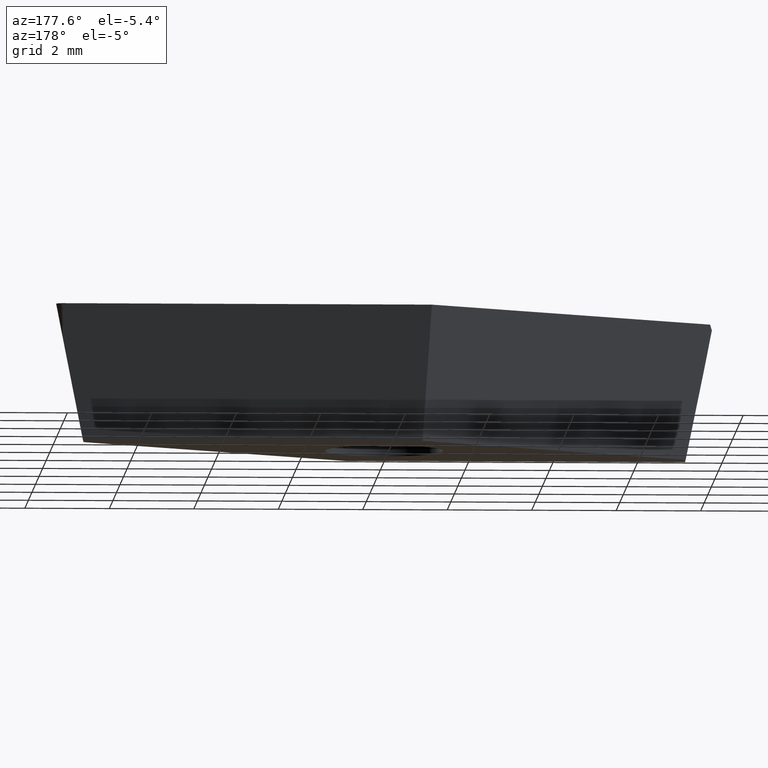
[diagram: clean part render]
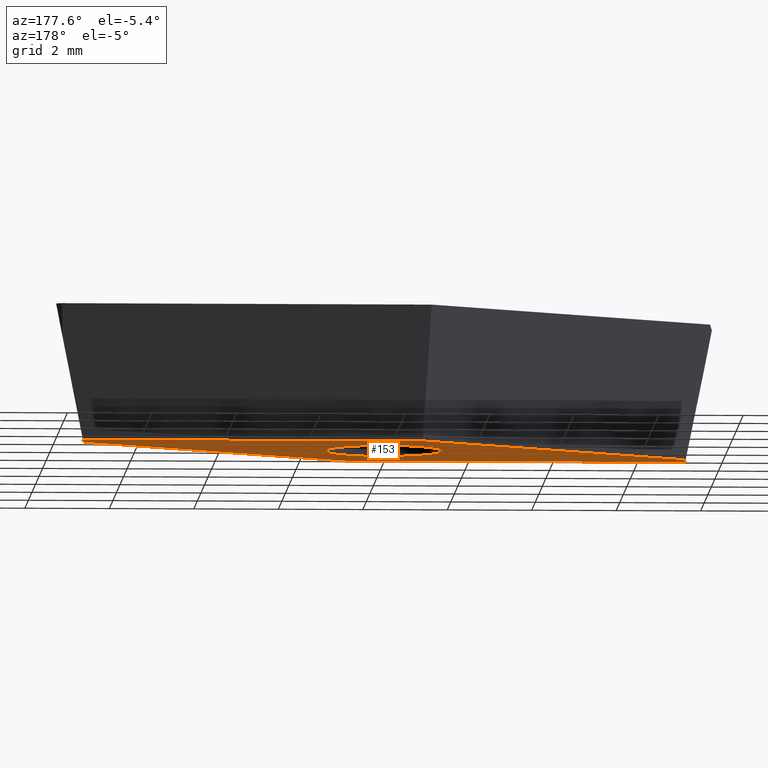
[diagram: same view with one face highlighted and labeled with its STEP entity id]
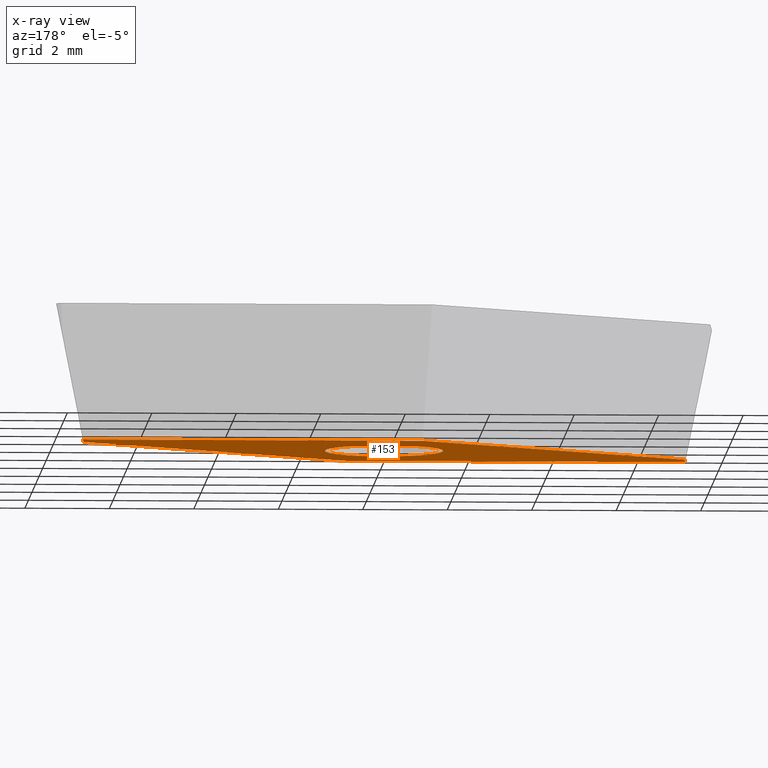
[diagram: x-ray of the same camera — body ghosted, the highlighted face saturated]
A machine part, auxiliary view. The second image highlights one B-rep face of the part: STEP entity #153.
The next image is the same camera in x-ray: the body ghosted, the highlighted face saturated — about 0% of this face is hidden behind the body in this view.
In plain terms, the highlighted planar face has unit normal (0, 0, -1).
Its self-contained STEP definition (entity closure, byte-faithful):
#22 = AXIS2_PLACEMENT_3D ( 'NONE', #272, #264, #262 ) ;
#25 = DIRECTION ( 'NONE',  ( 0.0000000000000000000, 0.0000000000000000000, -1.000000000000000000 ) ) ;
#31 = EDGE_CURVE ( 'NONE', #390, #176, #122, .T. ) ;
#36 = CIRCLE ( 'NONE', #429, 1.399999999999999900 ) ;
#38 = CARTESIAN_POINT ( 'NONE',  ( -1.399999999999999900, 1.714505518806294100E-016, -3.180000000000000200 ) ) ;
#39 = FACE_OUTER_BOUND ( 'NONE', #230, .T. ) ;
#42 = LINE ( 'NONE', #268, #119 ) ;
#43 = CARTESIAN_POINT ( 'NONE',  ( -0.8061782088420828000, 2.556870616942053400, -3.180000000000000200 ) ) ;
#50 = LINE ( 'NONE', #376, #51 ) ;
#51 = VECTOR ( 'NONE', #409, 1000.000000000000000 ) ;
#53 = FACE_BOUND ( 'NONE', #270, .T. ) ;
#64 = CARTESIAN_POINT ( 'NONE',  ( 7.237137390861797700, 2.556870616942054300, -3.180000000000000200 ) ) ;
#81 = CARTESIAN_POINT ( 'NONE',  ( 1.399999999999999900, 0.0000000000000000000, -3.180000000000000200 ) ) ;
#98 = CARTESIAN_POINT ( 'NONE',  ( 7.433744630409206500, 2.083801351424741500, -3.180000000000000200 ) ) ;
#99 = DIRECTION ( 'NONE',  ( 1.000000000000000000, 9.744461978823350000E-017, 0.0000000000000000000 ) ) ;
#107 = CARTESIAN_POINT ( 'NONE',  ( 0.0000000000000000000, 0.0000000000000000000, -3.180000000000000200 ) ) ;
#112 = EDGE_CURVE ( 'NONE', #357, #140, #50, .T. ) ;
#119 = VECTOR ( 'NONE', #152, 1000.000000000000100 ) ;
#122 = LINE ( 'NONE', #98, #128 ) ;
#125 = DIRECTION ( 'NONE',  ( 0.0000000000000000000, 0.0000000000000000000, 1.000000000000000000 ) ) ;
#126 = CARTESIAN_POINT ( 'NONE',  ( 1.001073654690762600, -2.556870616942053400, -3.180000000000000200 ) ) ;
#128 = VECTOR ( 'NONE', #330, 1000.000000000000000 ) ;
#130 = DIRECTION ( 'NONE',  ( 1.000000000000000000, 0.0000000000000000000, 0.0000000000000000000 ) ) ;
#140 = VERTEX_POINT ( 'NONE', #43 ) ;
#146 = CARTESIAN_POINT ( 'NONE',  ( 0.0000000000000000000, 0.0000000000000000000, -3.180000000000000200 ) ) ;
#149 = CARTESIAN_POINT ( 'NONE',  ( -7.433744630409207400, -2.083801351424743800, -3.180000000000000200 ) ) ;
#152 = DIRECTION ( 'NONE',  ( -0.06975647374412608000, -0.9975640502598242000, 0.0000000000000000000 ) ) ;
#153 = ADVANCED_FACE ( 'NONE', ( #53, #39 ), #327, .T. ) ;
#159 = DIRECTION ( 'NONE',  ( -0.8191520442889950200, -0.5735764363510415000, 0.0000000000000000000 ) ) ;
#161 = VERTEX_POINT ( 'NONE', #38 ) ;
#162 = EDGE_CURVE ( 'NONE', #180, #161, #36, .T. ) ;
#176 = VERTEX_POINT ( 'NONE', #192 ) ;
#180 = VERTEX_POINT ( 'NONE', #81 ) ;
#192 = CARTESIAN_POINT ( 'NONE',  ( 7.192231910145610000, 1.914692324122640600, -3.180000000000000200 ) ) ;
#197 = CARTESIAN_POINT ( 'NONE',  ( -7.192231910145610900, -1.914692324122642800, -3.180000000000000200 ) ) ;
#199 = EDGE_CURVE ( 'NONE', #326, #241, #42, .T. ) ;
#200 = DIRECTION ( 'NONE',  ( 0.06975647374412545500, 0.9975640502598242000, 0.0000000000000000000 ) ) ;
#208 = DIRECTION ( 'NONE',  ( -1.000000000000000000, 0.0000000000000000000, -0.0000000000000000000 ) ) ;
#214 = CARTESIAN_POINT ( 'NONE',  ( 0.8061782088420801400, -2.556870616942053400, -3.180000000000000200 ) ) ;
#226 = CARTESIAN_POINT ( 'NONE',  ( 7.283376349052109500, 3.218118526079754900, -3.180000000000000200 ) ) ;
#230 = EDGE_LOOP ( 'NONE', ( #278, #288, #290, #292, #298, #301 ) ) ;
#238 = LINE ( 'NONE', #126, #276 ) ;
#241 = VERTEX_POINT ( 'NONE', #401 ) ;
#262 = DIRECTION ( 'NONE',  ( 1.000000000000000000, 0.0000000000000000000, 0.0000000000000000000 ) ) ;
#264 = DIRECTION ( 'NONE',  ( 0.0000000000000000000, 0.0000000000000000000, 1.000000000000000000 ) ) ;
#268 = CARTESIAN_POINT ( 'NONE',  ( -7.283376349052111300, -3.218118526079755300, -3.180000000000000200 ) ) ;
#270 = EDGE_LOOP ( 'NONE', ( #274, #275 ) ) ;
#272 = CARTESIAN_POINT ( 'NONE',  ( 0.0000000000000000000, 0.0000000000000000000, -3.180000000000000200 ) ) ;
#274 = ORIENTED_EDGE ( 'NONE', *, *, #162, .T. ) ;
#275 = ORIENTED_EDGE ( 'NONE', *, *, #398, .T. ) ;
#276 = VECTOR ( 'NONE', #99, 1000.000000000000000 ) ;
#277 = VECTOR ( 'NONE', #159, 1000.000000000000000 ) ;
#278 = ORIENTED_EDGE ( 'NONE', *, *, #112, .F. ) ;
#288 = ORIENTED_EDGE ( 'NONE', *, *, #418, .F. ) ;
#289 = LINE ( 'NONE', #149, #277 ) ;
#290 = ORIENTED_EDGE ( 'NONE', *, *, #31, .F. ) ;
#292 = ORIENTED_EDGE ( 'NONE', *, *, #440, .F. ) ;
#298 = ORIENTED_EDGE ( 'NONE', *, *, #199, .F. ) ;
#301 = ORIENTED_EDGE ( 'NONE', *, *, #434, .F. ) ;
#326 = VERTEX_POINT ( 'NONE', #197 ) ;
#327 = PLANE ( 'NONE',  #435 ) ;
#330 = DIRECTION ( 'NONE',  ( 0.8191520442889951300, 0.5735764363510412700, 0.0000000000000000000 ) ) ;
#347 = VECTOR ( 'NONE', #200, 1000.000000000000100 ) ;
#357 = VERTEX_POINT ( 'NONE', #64 ) ;
#365 = LINE ( 'NONE', #226, #347 ) ;
#376 = CARTESIAN_POINT ( 'NONE',  ( -1.001073654690764600, 2.556870616942053400, -3.180000000000000200 ) ) ;
#390 = VERTEX_POINT ( 'NONE', #214 ) ;
#398 = EDGE_CURVE ( 'NONE', #161, #180, #415, .T. ) ;
#401 = CARTESIAN_POINT ( 'NONE',  ( -7.237137390861798600, -2.556870616942054300, -3.180000000000000200 ) ) ;
#409 = DIRECTION ( 'NONE',  ( -1.000000000000000000, -9.744461978823350000E-017, 0.0000000000000000000 ) ) ;
#415 = CIRCLE ( 'NONE', #22, 1.399999999999999900 ) ;
#418 = EDGE_CURVE ( 'NONE', #176, #357, #365, .T. ) ;
#429 = AXIS2_PLACEMENT_3D ( 'NONE', #107, #125, #130 ) ;
#434 = EDGE_CURVE ( 'NONE', #140, #326, #289, .T. ) ;
#435 = AXIS2_PLACEMENT_3D ( 'NONE', #146, #25, #208 ) ;
#440 = EDGE_CURVE ( 'NONE', #241, #390, #238, .T. ) ;